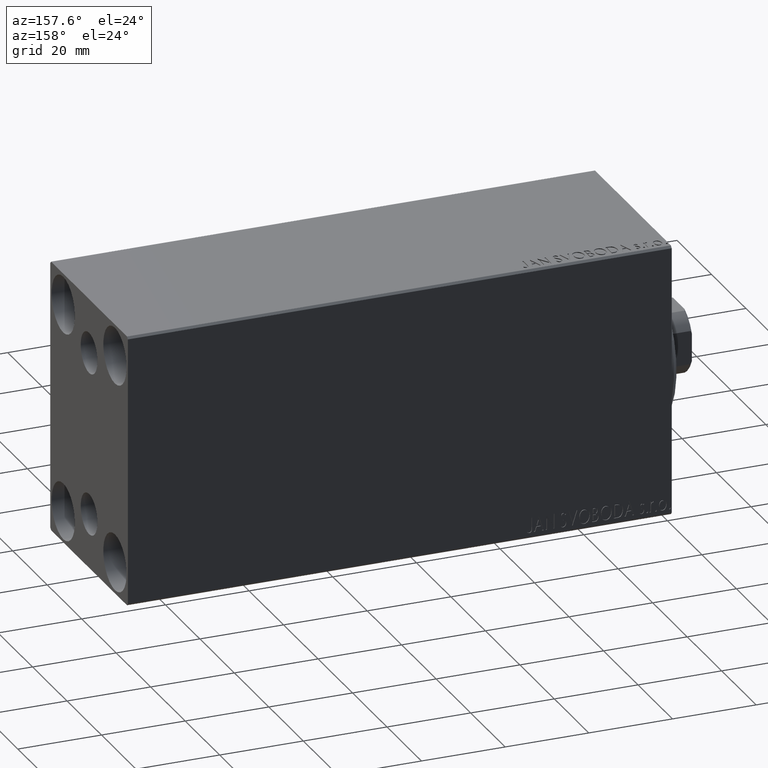
[diagram: clean part render]
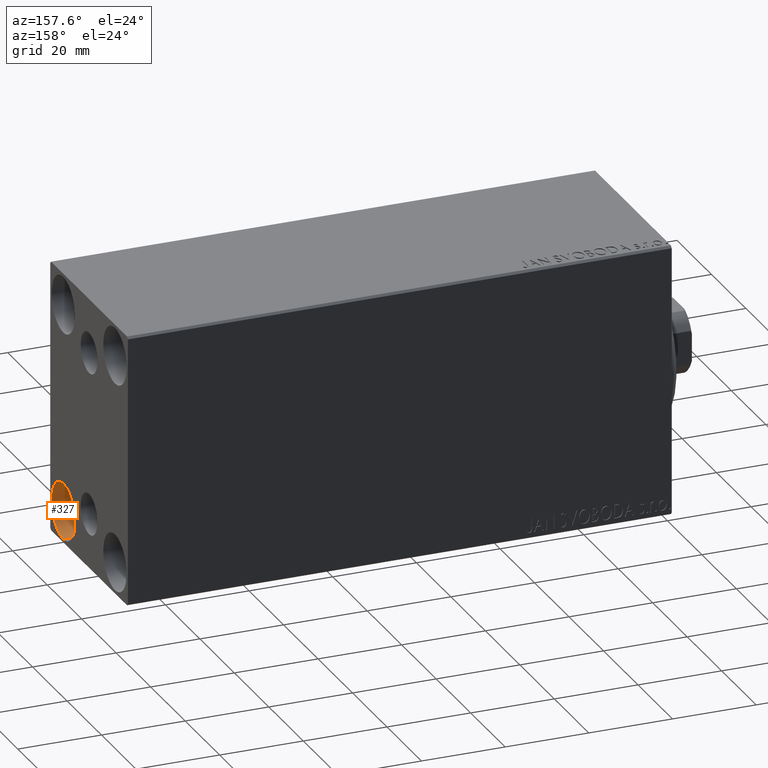
[diagram: same view with one face highlighted and labeled with its STEP entity id]
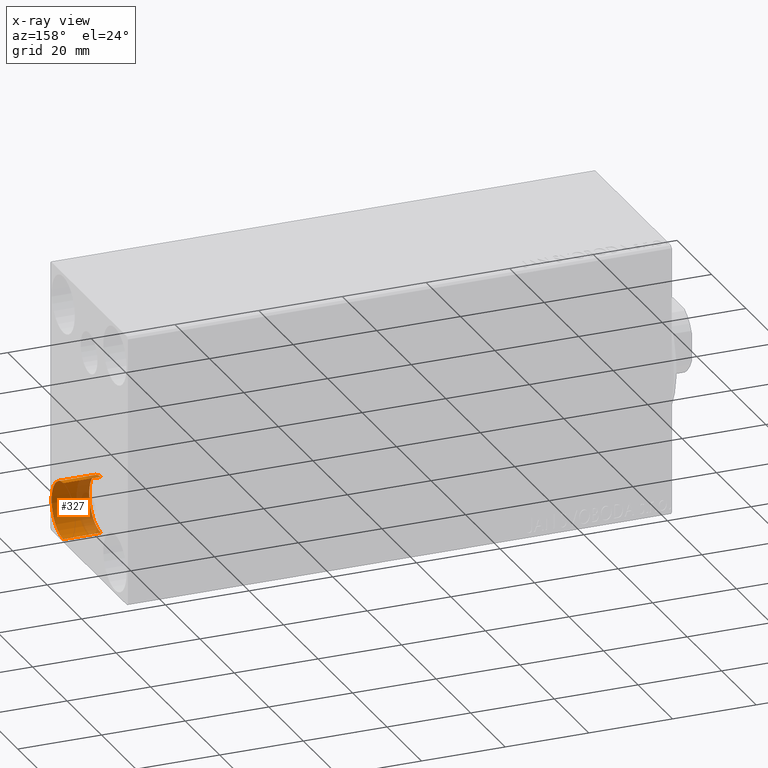
[diagram: x-ray of the same camera — body ghosted, the highlighted face saturated]
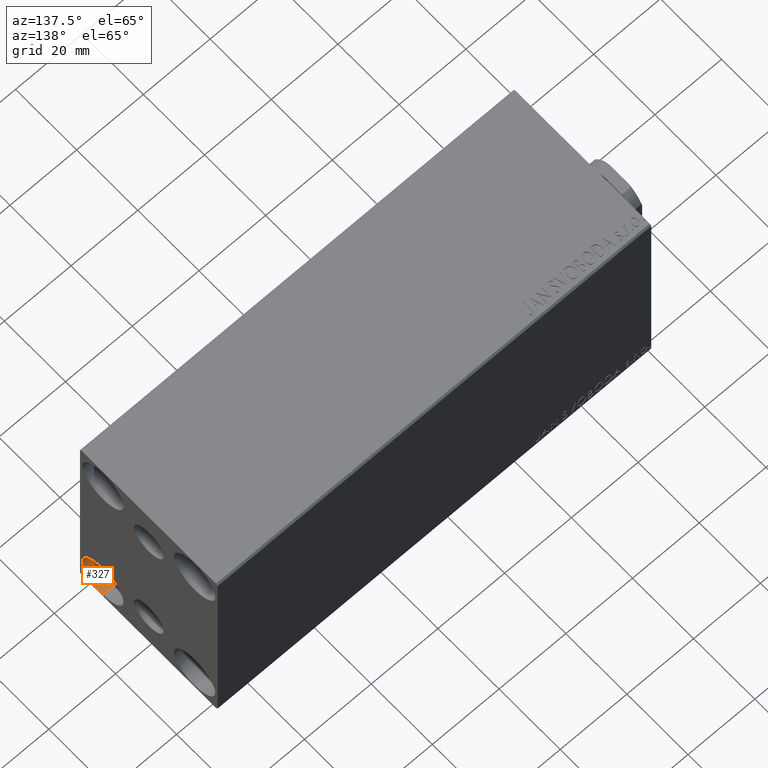
[diagram: same view with one face highlighted and labeled with its STEP entity id]
A machine part, auxiliary view. The second image highlights one B-rep face of the part: STEP entity #327.
The next image is the same camera in x-ray: the body ghosted, the highlighted face saturated — about 33% of this face is hidden behind the body in this view.
A second angle (auxiliary view) of the same face is appended — the face is thin or edge-on in the first view.
In plain terms, the highlighted cylindrical surface (edge-blend (fillet) strip) has radius 6.75 mm, axis along (1, 0, 0).
Its self-contained STEP definition (entity closure, byte-faithful):
#232 = AXIS2_PLACEMENT_3D ( 'NONE', #26426, #2081, #19126 ) ;
#327 = ADVANCED_FACE ( 'NONE', ( #39504 ), #18912, .F. ) ;
#841 = AXIS2_PLACEMENT_3D ( 'NONE', #38508, #8178, #24349 ) ;
#2081 = DIRECTION ( 'NONE',  ( 1.000000000000000000, -0.000000000000000000, -0.000000000000000000 ) ) ;
#4359 = DIRECTION ( 'NONE',  ( 1.000000000000000000, -0.000000000000000000, -0.000000000000000000 ) ) ;
#7975 = ORIENTED_EDGE ( 'NONE', *, *, #42076, .F. ) ;
#8178 = DIRECTION ( 'NONE',  ( -1.000000000000000000, -0.000000000000000000, -0.000000000000000000 ) ) ;
#10771 = DIRECTION ( 'NONE',  ( 0.000000000000000000, 0.000000000000000000, 1.000000000000000000 ) ) ;
#12607 = DIRECTION ( 'NONE',  ( 1.000000000000000000, -0.000000000000000000, -0.000000000000000000 ) ) ;
#12788 = EDGE_CURVE ( 'NONE', #43722, #36306, #30713, .T. ) ;
#13223 = DIRECTION ( 'NONE',  ( -1.000000000000000000, -0.000000000000000000, -0.000000000000000000 ) ) ;
#13296 = CIRCLE ( 'NONE', #38044, 6.749999999999999112 ) ;
#15419 = VERTEX_POINT ( 'NONE', #40876 ) ;
#15854 = VERTEX_POINT ( 'NONE', #19318 ) ;
#16343 = EDGE_CURVE ( 'NONE', #15854, #43722, #13296, .T. ) ;
#16724 = CARTESIAN_POINT ( 'NONE',  ( 130.0000000000000000, -15.00000000000000355, -18.25000000000000355 ) ) ;
#17375 = CARTESIAN_POINT ( 'NONE',  ( 121.0000000000000142, -15.00000000000000355, -18.25000000000000355 ) ) ;
#18834 = VECTOR ( 'NONE', #4359, 1000.000000000000000 ) ;
#18912 = CYLINDRICAL_SURFACE ( 'NONE', #232, 6.749999999999999112 ) ;
#19126 = DIRECTION ( 'NONE',  ( 0.000000000000000000, 0.000000000000000000, -1.000000000000000000 ) ) ;
#19318 = CARTESIAN_POINT ( 'NONE',  ( 121.0000000000000142, -15.00000000000000355, -31.75000000000000000 ) ) ;
#21415 = CARTESIAN_POINT ( 'NONE',  ( 121.0000000000000142, -15.00000000000000355, -18.25000000000000355 ) ) ;
#23456 = CIRCLE ( 'NONE', #841, 6.749999999999999112 ) ;
#24349 = DIRECTION ( 'NONE',  ( 0.000000000000000000, 0.000000000000000000, 1.000000000000000000 ) ) ;
#26112 = CARTESIAN_POINT ( 'NONE',  ( 121.0000000000000142, -15.00000000000000355, -31.75000000000000000 ) ) ;
#26426 = CARTESIAN_POINT ( 'NONE',  ( 121.0000000000000142, -15.00000000000000355, -25.00000000000000000 ) ) ;
#30583 = VECTOR ( 'NONE', #12607, 1000.000000000000000 ) ;
#30713 = LINE ( 'NONE', #21415, #18834 ) ;
#31793 = EDGE_LOOP ( 'NONE', ( #34440, #38202, #33848, #7975 ) ) ;
#33848 = ORIENTED_EDGE ( 'NONE', *, *, #35608, .F. ) ;
#34440 = ORIENTED_EDGE ( 'NONE', *, *, #16343, .T. ) ;
#35608 = EDGE_CURVE ( 'NONE', #15419, #36306, #23456, .T. ) ;
#36303 = LINE ( 'NONE', #26112, #30583 ) ;
#36306 = VERTEX_POINT ( 'NONE', #16724 ) ;
#38044 = AXIS2_PLACEMENT_3D ( 'NONE', #43560, #13223, #10771 ) ;
#38202 = ORIENTED_EDGE ( 'NONE', *, *, #12788, .T. ) ;
#38508 = CARTESIAN_POINT ( 'NONE',  ( 130.0000000000000000, -15.00000000000000355, -25.00000000000000000 ) ) ;
#39504 = FACE_OUTER_BOUND ( 'NONE', #31793, .T. ) ;
#40876 = CARTESIAN_POINT ( 'NONE',  ( 130.0000000000000000, -15.00000000000000355, -31.75000000000000000 ) ) ;
#42076 = EDGE_CURVE ( 'NONE', #15854, #15419, #36303, .T. ) ;
#43560 = CARTESIAN_POINT ( 'NONE',  ( 121.0000000000000142, -15.00000000000000355, -25.00000000000000000 ) ) ;
#43722 = VERTEX_POINT ( 'NONE', #17375 ) ;